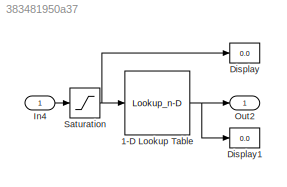
MODEL slx_383481950a37
KIND model
CONFIG AbsTol = auto
CONFIG EnableMultiTasking = on
CONFIG FixedStep = 0.200000
CONFIG MaxStep = auto
CONFIG MinStep = auto
CONFIG RelTol = 1e-3
CONFIG SampleTimeConstraint = Unconstrained
CONFIG Solver = FixedStepDiscrete
CONFIG SolverName = FixedStepDiscrete
CONFIG StartTime = 0.0
CONFIG StopTime = 10.0
WORKSPACE source: MAT-file member
WORKSPACE input_struct: struct (value not decoded)
BLOCK [Lookup_n-D] 1-D Lookup Table
  BreakpointsForDimension1 = [0:0.1:2*pi]
  ExtrapMethod = Clip
  InternalRulePriority = Speed
  InterpMethod = Flat
  NumberOfTableDimensions = 1
  Ports = [1, 1]
  RndMeth = Simplest
  Table = cos([0:0.1:2*pi])
BLOCK [Display] Display
  Decimation = 1
  Ports = [1]
BLOCK [Display] Display1
  Decimation = 1
  Ports = [1]
BLOCK [Inport] In4
  IconDisplay = Port number
BLOCK [Outport] Out2
  IconDisplay = Port number
BLOCK [Saturate] Saturation
  InputPortMap = u0
  LowerLimit = -1.5
  Ports = [1, 1]
  UpperLimit = 1.5
NET 1-D Lookup Table:1 -> Display1:1, Out2:1
LINE In4:1 -> Saturation:1
NET Saturation:1 -> 1-D Lookup Table:1, Display:1
note: NET lines group one-source signal fan-out (src -> all destinations, sorted); 1:1 wires keep LINE
